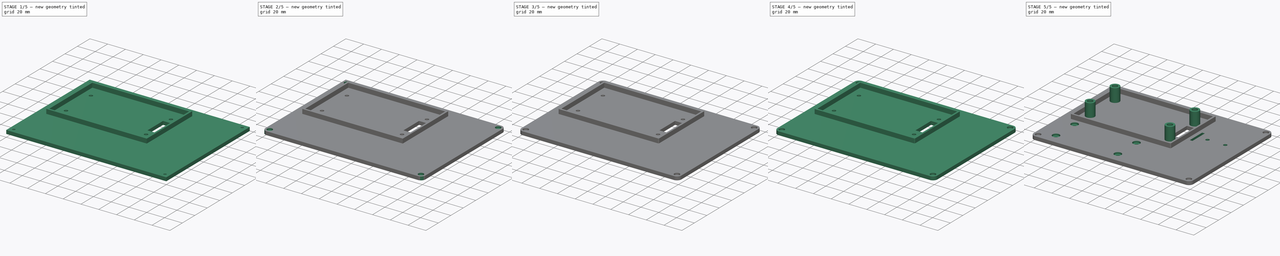
[diagram: build sequence overview — one tinted view per stage of 5, left to right]
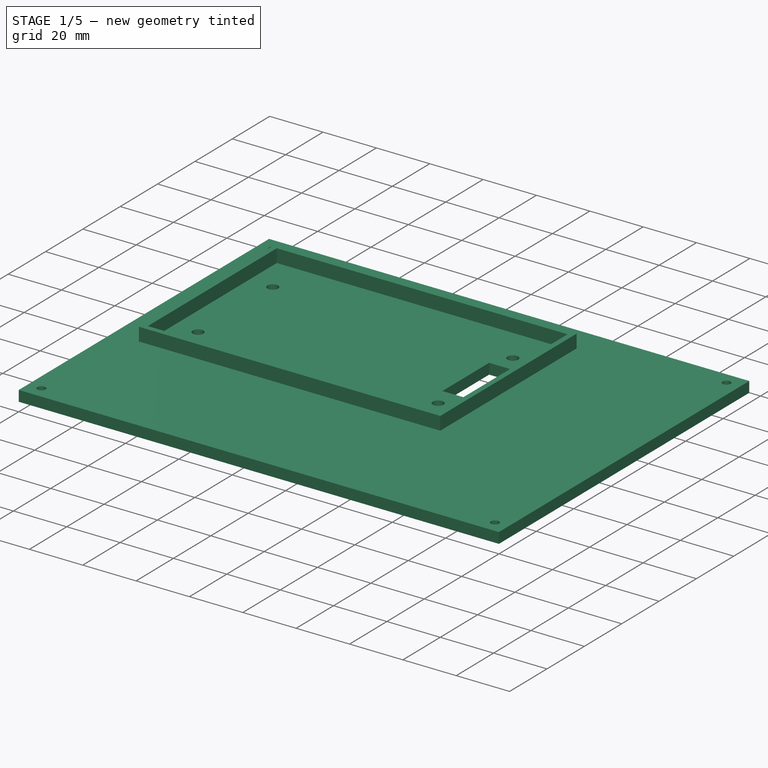
[diagram: stage 1 of 5 — iso view after this stage's code; geometry added in this stage tinted green]
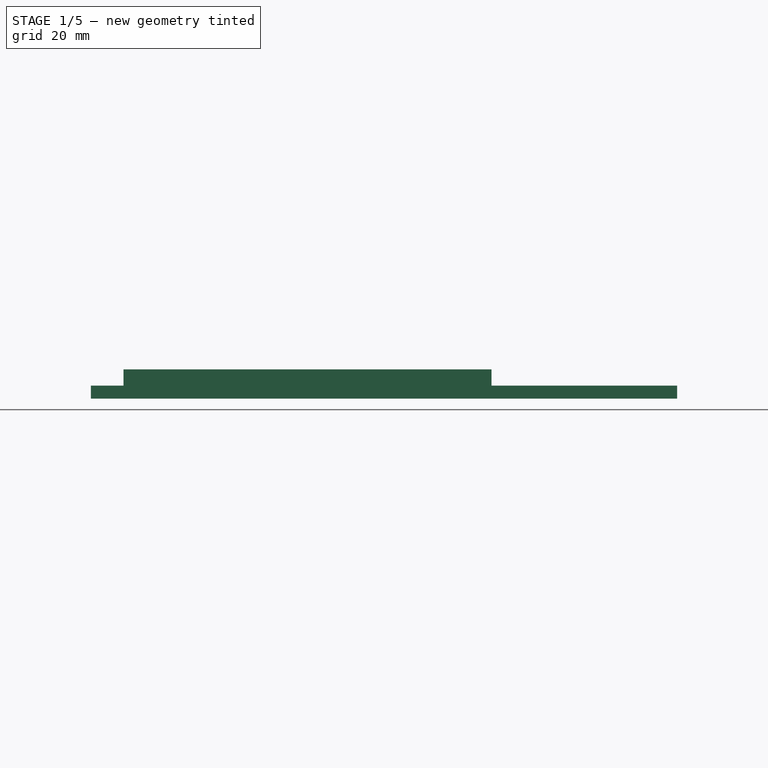
[diagram: stage 1 of 5 — front view after this stage's code; geometry added in this stage tinted green]
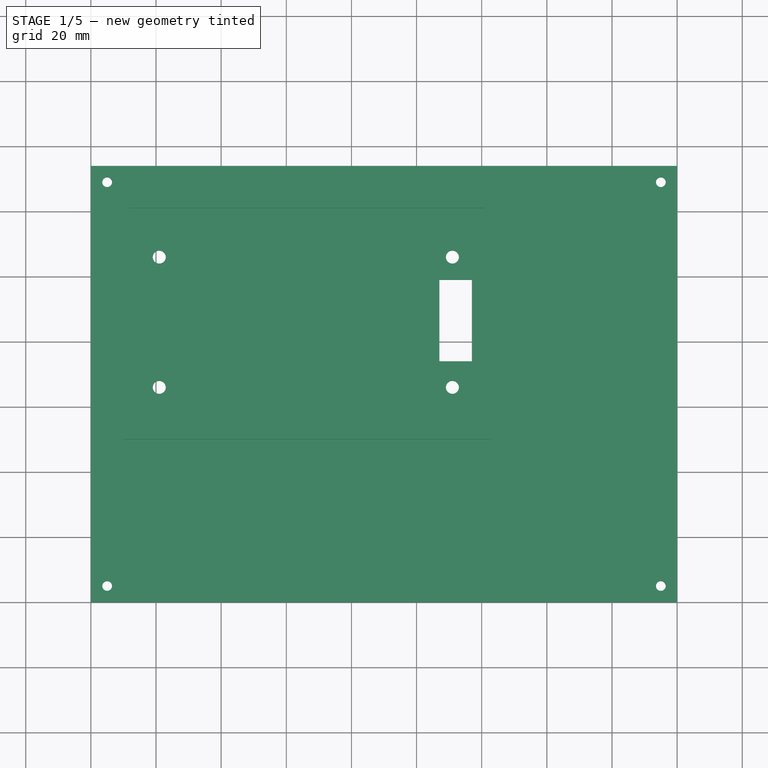
[diagram: stage 1 of 5 — top view after this stage's code; geometry added in this stage tinted green]
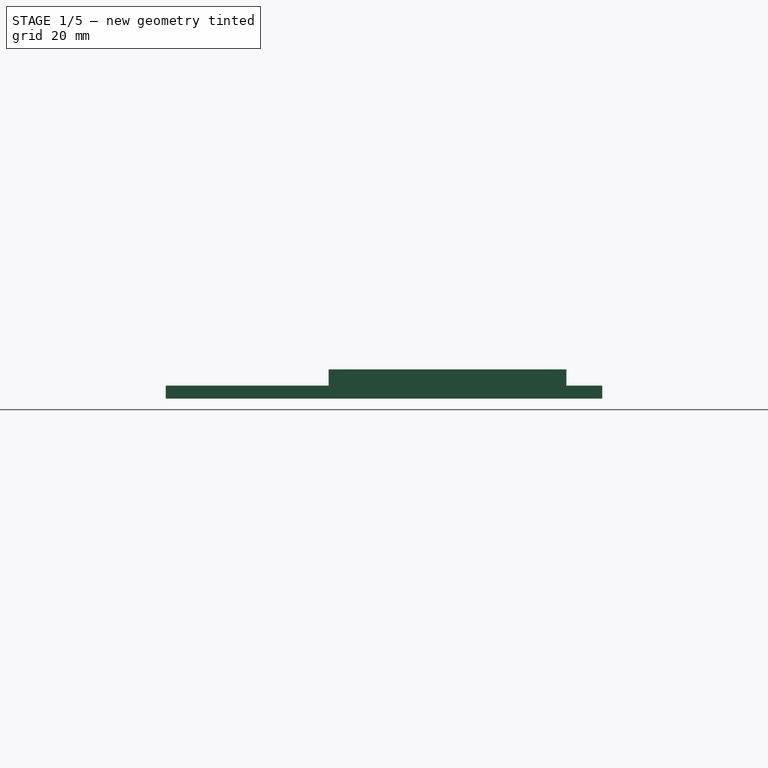
[diagram: stage 1 of 5 — right view after this stage's code; geometry added in this stage tinted green]
FCSTD DOCUMENT  (FreeCAD 0.16R6706 (Git))
Label: iROB-EA_ModuloPrincipal_Tapa
License: All rights reserved
LicenseURL: http://en.wikipedia.org/wiki/All_rights_reserved
objects: PartDesign::Fillet×12, Sketcher::SketchObject×8, PartDesign::Pocket×5, PartDesign::Pad×3
note: 36 computed .brp shape members not serialized (recipe doc carries the construction recipe); baked Part::Feature solids carry a one-line shape summary decoded from their .brp

FEATURE [Sketcher::SketchObject] Sketch  label="Base"
  sketch-geometry (4):
    g0: LineSegment StartX=0 StartY=134 StartZ=0 EndX=180 EndY=134 EndZ=0
    g1: LineSegment StartX=180 StartY=134 StartZ=0 EndX=180 EndY=0 EndZ=0
    g2: LineSegment StartX=180 StartY=0 StartZ=0 EndX=0 EndY=0 EndZ=0
    g3: LineSegment StartX=0 StartY=0 StartZ=0 EndX=0 EndY=134 EndZ=0
  constraints (11):
    c: Coincident(g0,g1)
    c: Coincident(g1,g2)
    c: Coincident(g2,g3)
    c: Coincident(g3,g0)
    c: Horizontal(g0)
    c: Horizontal(g2)
    c: Vertical(g1)
    c: Vertical(g3)
    c: DistanceX(g0,g0) = 180
    c: DistanceY(g3,g3) = 134
    c: Coincident(g2,g-1)
FEATURE [PartDesign::Pad] Pad
  Length = 4
  Length2 = 100
  Sketch = -> Sketch
  Type = 0
FEATURE [Sketcher::SketchObject] Sketch001  label="Tornillos_Tapa"
  Placement = pos=(0,0,4) rot=(0,0,1;0rad)
  Support = -> Pad [Face6]
  sketch-geometry (4):
    g0: Circle CenterX=5 CenterY=129 CenterZ=0 NormalX=0 NormalY=0 NormalZ=1 Radius=1.5
    g1: Circle CenterX=175 CenterY=129 CenterZ=0 NormalX=0 NormalY=0 NormalZ=1 Radius=1.5
    g2: Circle CenterX=5 CenterY=5 CenterZ=0 NormalX=0 NormalY=0 NormalZ=1 Radius=1.5
    g3: Circle CenterX=175 CenterY=5 CenterZ=0 NormalX=0 NormalY=0 NormalZ=1 Radius=1.5
  constraints (11):
    c: Radius(g0) = 1.5
    c: Radius(g1) = 1.5
    c: DistanceY(g0,g1) = 0
    c: DistanceX(g0,g1) = 170
    c: Radius(g2) = 1.5
    c: Radius(g3) = 1.5
    c: DistanceY(g2,g3) = 0
    c: DistanceX(g0,g2) = 0
    c: DistanceY(g2,g0) = 124
    c: DistanceX(g2,g-1) = -5
    c: DistanceY(g-1,g2) = 5
FEATURE [PartDesign::Pocket] Pocket
  Length = 4
  Sketch = -> Sketch001
  Type = 0
FEATURE [Sketcher::SketchObject] Sketch002  label="Borde"
  Placement = pos=(0,0,4) rot=(0,0,1;0rad)
  Support = -> Pocket [Face5]
  sketch-geometry (8):
    g0: LineSegment StartX=12 StartY=121 StartZ=0 EndX=121 EndY=121 EndZ=0
    g1: LineSegment StartX=121 StartY=121 StartZ=0 EndX=121 EndY=52 EndZ=0
    g2: LineSegment StartX=121 StartY=52 StartZ=0 EndX=12 EndY=52 EndZ=0
    g3: LineSegment StartX=12 StartY=52 StartZ=0 EndX=12 EndY=121 EndZ=0
    g4: LineSegment StartX=10 StartY=123 StartZ=0 EndX=123 EndY=123 EndZ=0
    g5: LineSegment StartX=123 StartY=123 StartZ=0 EndX=123 EndY=50 EndZ=0
    g6: LineSegment StartX=123 StartY=50 StartZ=0 EndX=10 EndY=50 EndZ=0
    g7: LineSegment StartX=10 StartY=50 StartZ=0 EndX=10 EndY=123 EndZ=0
  constraints (24):
    c: Coincident(g0,g1)
    c: Coincident(g1,g2)
    c: Coincident(g2,g3)
    c: Coincident(g3,g0)
    c: Horizontal(g0)
    c: Horizontal(g2)
    c: Vertical(g1)
    c: Vertical(g3)
    c: DistanceX(g0,g0) = 109
    c: DistanceY(g3,g3) = 69
    c: Coincident(g4,g5)
    c: Coincident(g5,g6)
    c: Coincident(g6,g7)
    c: Coincident(g7,g4)
    c: Horizontal(g4)
    c: Horizontal(g6)
    c: Vertical(g5)
    c: Vertical(g7)
    c: DistanceX(g4,g4) = 113
    c: DistanceY(g7,g7) = 73
    c: DistanceX(g6,g2) = 2
    c: DistanceY(g2,g6) = -2
    c: DistanceX(g6,g-1) = -10
    c: DistanceY(g-1,g6) = 50
FEATURE [PartDesign::Pad] Pad001
  Length = 5
  Length2 = 100
  Sketch = -> Sketch002
  Type = 0
FEATURE [Sketcher::SketchObject] Sketch003  label="Tornillos_Estacion_Ranura_Cable"
  Placement = pos=(0,0,4) rot=(0,0,1;0rad)
  Support = -> Pad001 [Face20]
  sketch-geometry (8):
    g0: Circle CenterX=21 CenterY=106 CenterZ=0 NormalX=0 NormalY=0 NormalZ=1 Radius=2
    g1: Circle CenterX=111 CenterY=106 CenterZ=0 NormalX=0 NormalY=0 NormalZ=1 Radius=2
    g2: Circle CenterX=21 CenterY=66 CenterZ=0 NormalX=0 NormalY=0 NormalZ=1 Radius=2
    g3: Circle CenterX=111 CenterY=66 CenterZ=0 NormalX=0 NormalY=0 NormalZ=1 Radius=2
    g4: LineSegment StartX=107 StartY=99 StartZ=0 EndX=117 EndY=99 EndZ=0
    g5: LineSegment StartX=117 StartY=99 StartZ=0 EndX=117 EndY=74 EndZ=0
    g6: LineSegment StartX=117 StartY=74 StartZ=0 EndX=107 EndY=74 EndZ=0
    g7: LineSegment StartX=107 StartY=74 StartZ=0 EndX=107 EndY=99 EndZ=0
  constraints (24):
    c: Radius(g0) = 2
    c: Radius(g1) = 2
    c: DistanceY(g0,g1) = 0
    c: DistanceX(g0,g1) = 90
    c: Radius(g2) = 2
    c: Radius(g3) = 2
    c: DistanceX(g0,g2) = 0
    c: DistanceY(g2,g0) = 40
    c: DistanceY(g3,g2) = 0
    c: DistanceX(g3,g1) = 0
    c: DistanceY(g-1,g2) = 66
    c: DistanceX(g2,g-1) = -21
    c: Coincident(g4,g5)
    c: Coincident(g5,g6)
    c: Coincident(g6,g7)
    c: Coincident(g7,g4)
    c: Horizontal(g4)
    c: Horizontal(g6)
    c: Vertical(g5)
    c: Vertical(g7)
    c: DistanceX(g4,g4) = 10
    c: DistanceY(g5,g5) = 25
    c: DistanceX(g-1,g6) = 107
    c: DistanceY(g-1,g6) = 74
FEATURE [PartDesign::Pocket] Pocket001
  Length = 4
  Sketch = -> Sketch003
  Type = 0
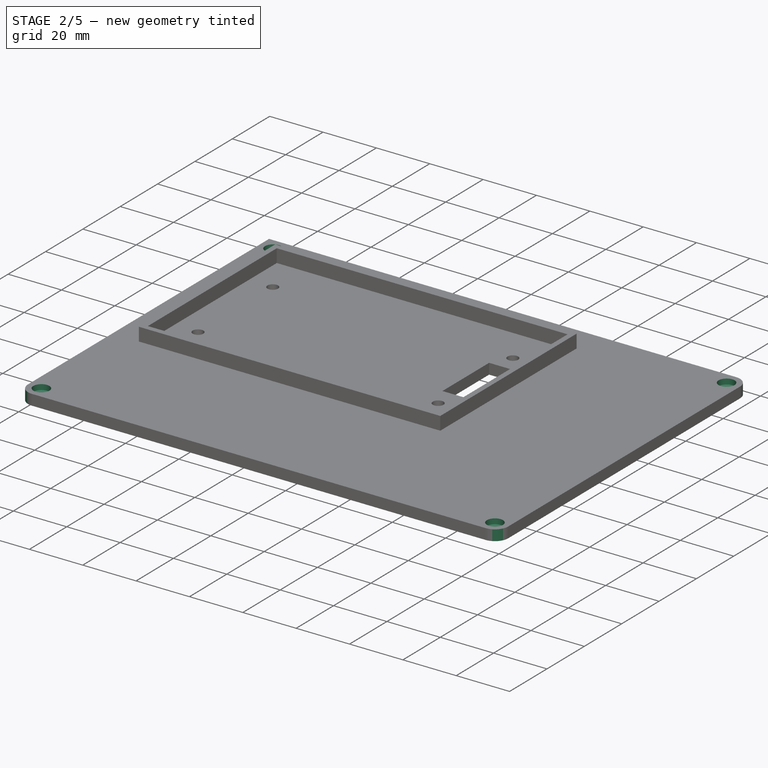
[diagram: stage 2 of 5 — iso view after this stage's code; geometry added in this stage tinted green]
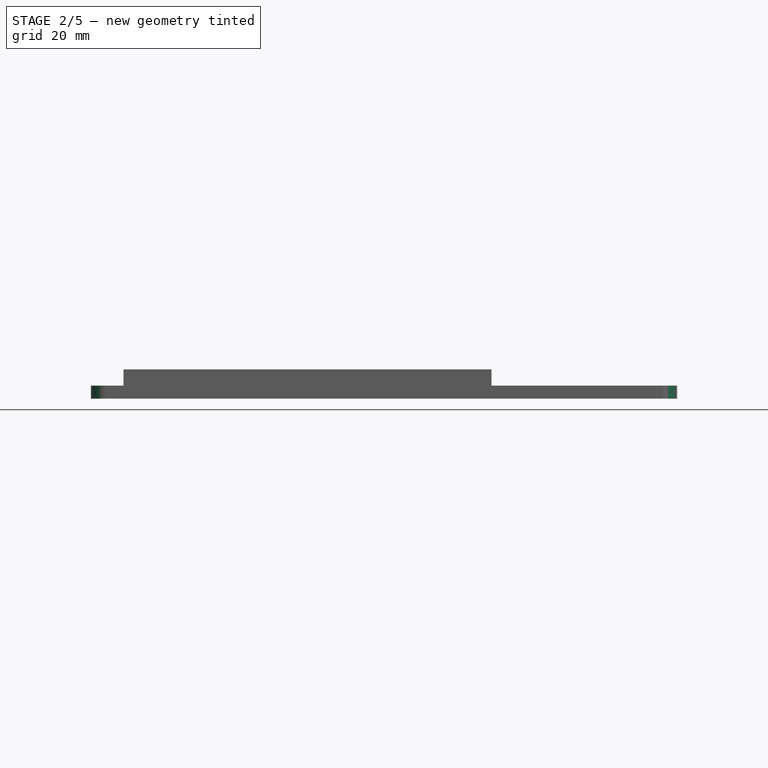
[diagram: stage 2 of 5 — front view after this stage's code; geometry added in this stage tinted green]
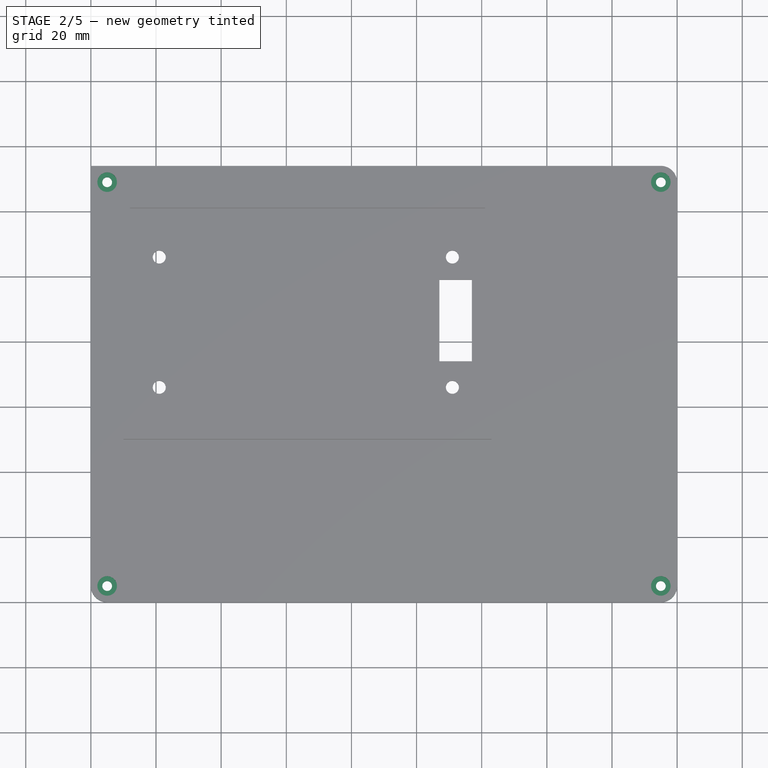
[diagram: stage 2 of 5 — top view after this stage's code; geometry added in this stage tinted green]
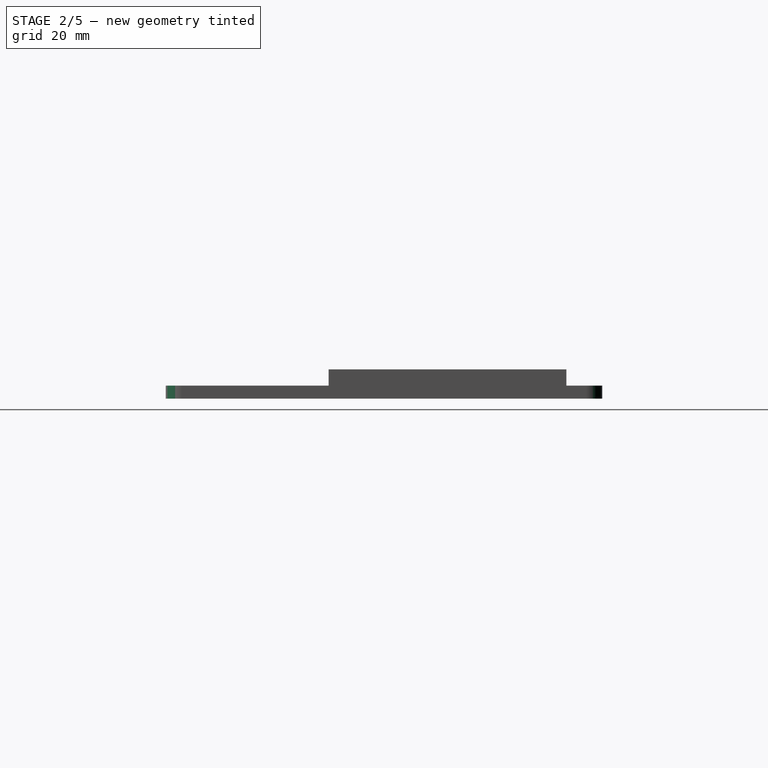
[diagram: stage 2 of 5 — right view after this stage's code; geometry added in this stage tinted green]
FEATURE [Sketcher::SketchObject] Sketch004
  Placement = pos=(0,0,4) rot=(0,0,1;0rad)
  Support = -> Pocket001 [Face5]
  sketch-geometry (4):
    g0: Circle CenterX=5 CenterY=5 CenterZ=0 NormalX=0 NormalY=0 NormalZ=1 Radius=3
    g1: Circle CenterX=175 CenterY=5 CenterZ=0 NormalX=0 NormalY=0 NormalZ=1 Radius=3
    g2: Circle CenterX=5 CenterY=129 CenterZ=0 NormalX=0 NormalY=0 NormalZ=1 Radius=3
    g3: Circle CenterX=175 CenterY=129 CenterZ=0 NormalX=0 NormalY=0 NormalZ=1 Radius=3
  constraints (12):
    c: Radius(g0) = 3
    c: Radius(g1) = 3
    c: DistanceY(g0,g1) = 0
    c: DistanceY(g-1,g0) = 5
    c: DistanceX(g0,g-1) = -5
    c: DistanceX(g1,g0) = -170
    c: Radius(g2) = 3
    c: DistanceX(g2,g0) = 0
    c: DistanceY(g0,g2) = 124
    c: Radius(g3) = 3
    c: DistanceY(g3,g2) = 0
    c: DistanceX(g3,g2) = -170
FEATURE [PartDesign::Pocket] Pocket002
  Length = 2
  Sketch = -> Sketch004
  Type = 0
FEATURE [PartDesign::Fillet] Fillet  label="Borde_Tapa_0"
  Base = -> Pocket002 [Edge5]
  Radius = 5
FEATURE [PartDesign::Fillet] Fillet001  label="Borde_Tapa_1"
  Base = -> Fillet [Edge35]
  Radius = 5
FEATURE [PartDesign::Fillet] Fillet002  label="Borde_Tapa_2"
  Base = -> Fillet001 [Edge26]
  Radius = 5
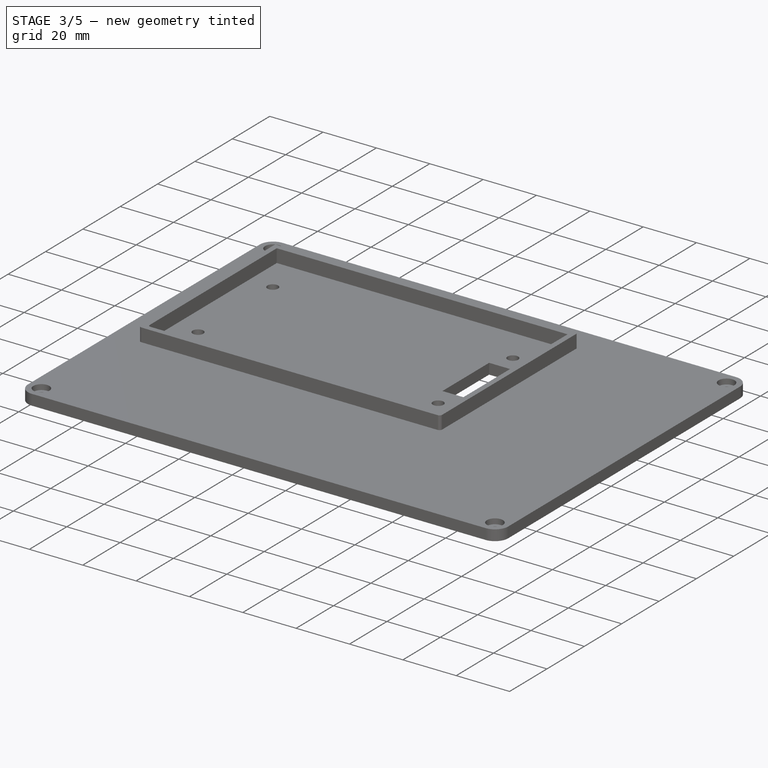
[diagram: stage 3 of 5 — iso view after this stage's code; geometry added in this stage tinted green]
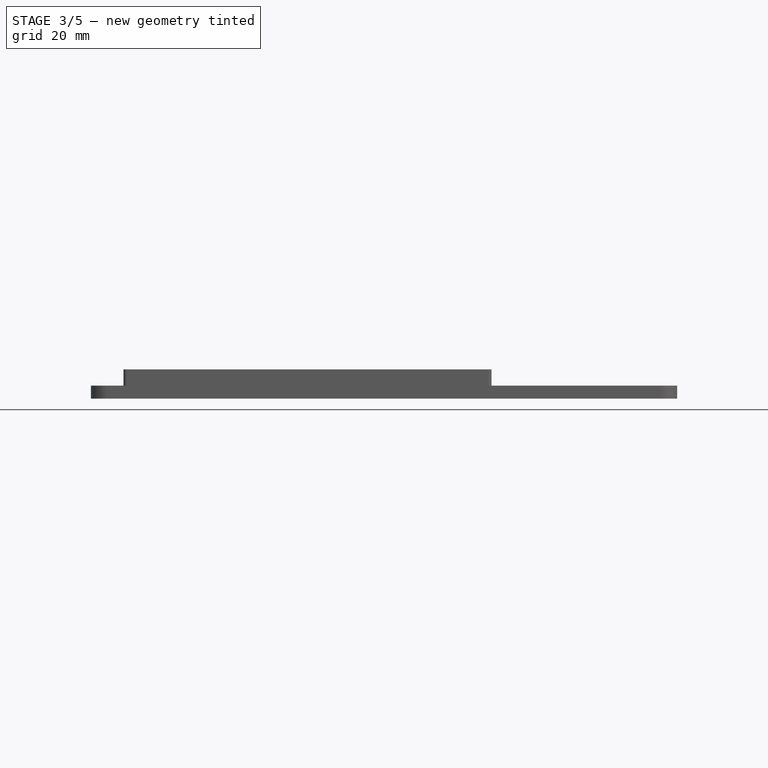
[diagram: stage 3 of 5 — front view after this stage's code; geometry added in this stage tinted green]
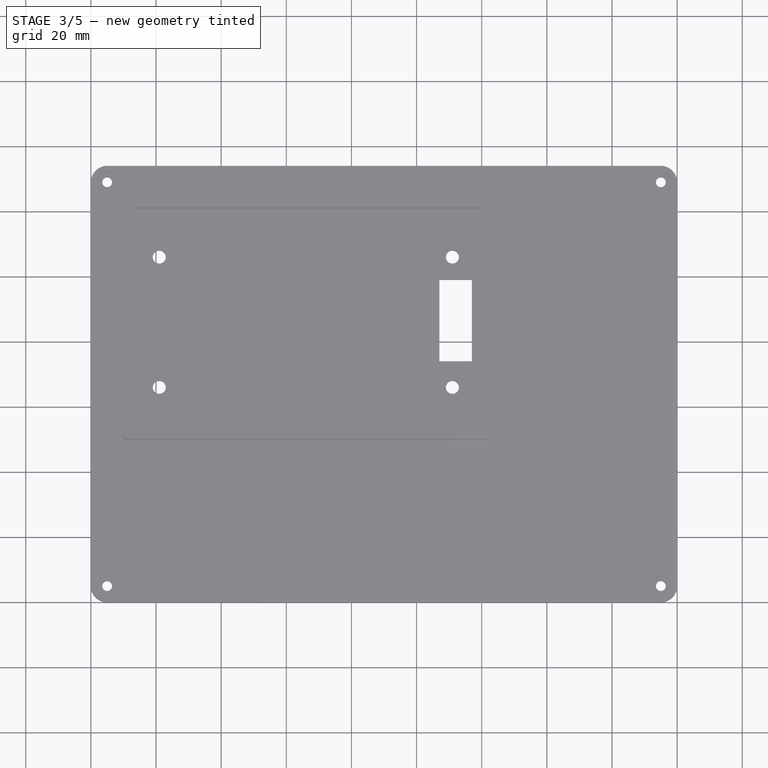
[diagram: stage 3 of 5 — top view after this stage's code; geometry added in this stage tinted green]
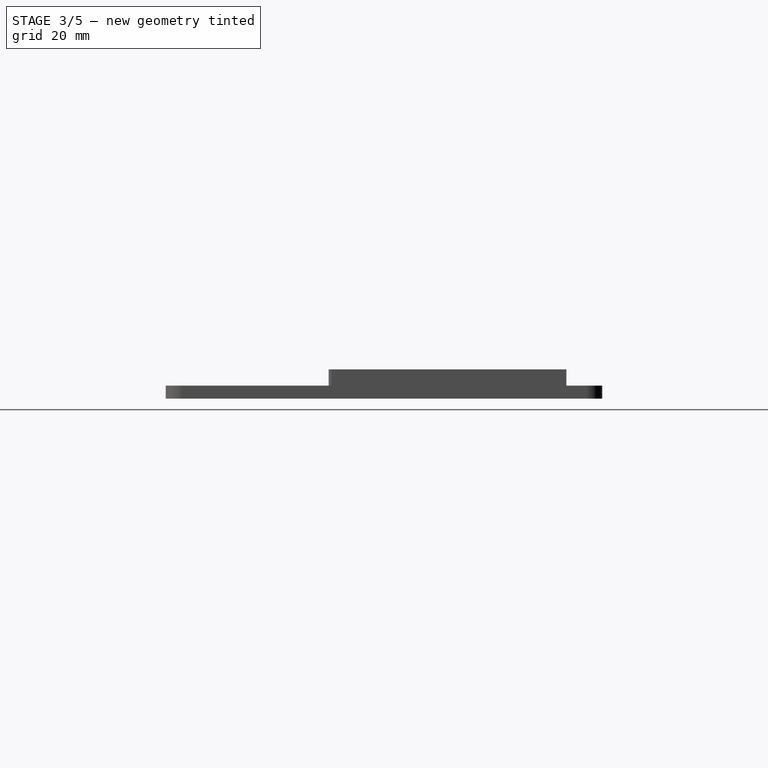
[diagram: stage 3 of 5 — right view after this stage's code; geometry added in this stage tinted green]
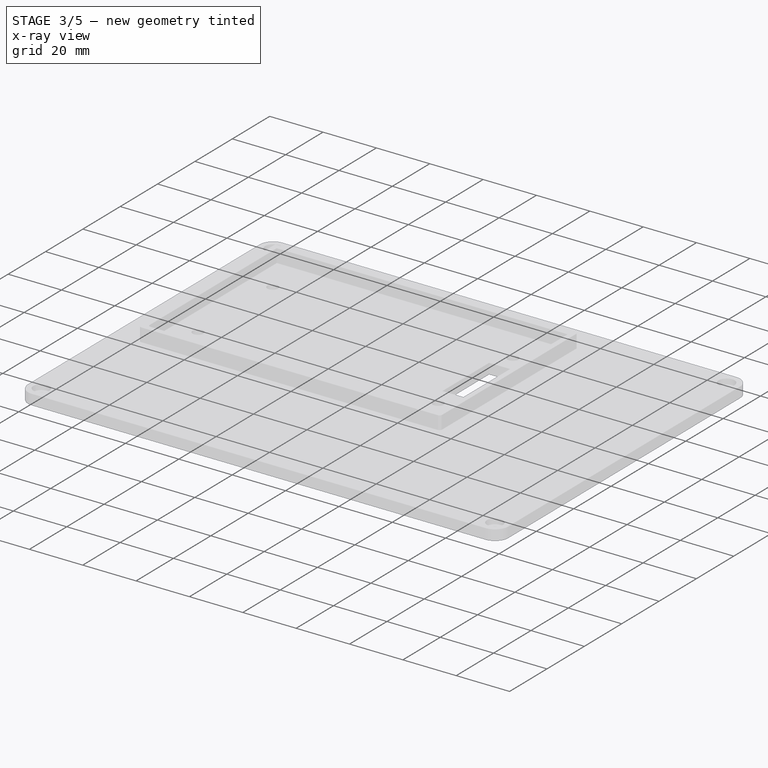
[diagram: stage 3 of 5 — x-ray composite at the iso view; earlier geometry ghosted, this stage's added geometry solid]
FEATURE [PartDesign::Fillet] Fillet003  label="Borde_Tapa_3"
  Base = -> Fillet002 [Edge27]
  Radius = 5
FEATURE [PartDesign::Fillet] Fillet004
  Base = -> Fillet003 [Edge79]
  Radius = 1
FEATURE [PartDesign::Fillet] Fillet005
  Base = -> Fillet004 [Edge78]
  Radius = 1
FEATURE [PartDesign::Fillet] Fillet006
  Base = -> Fillet005 [Edge23]
  Radius = 1
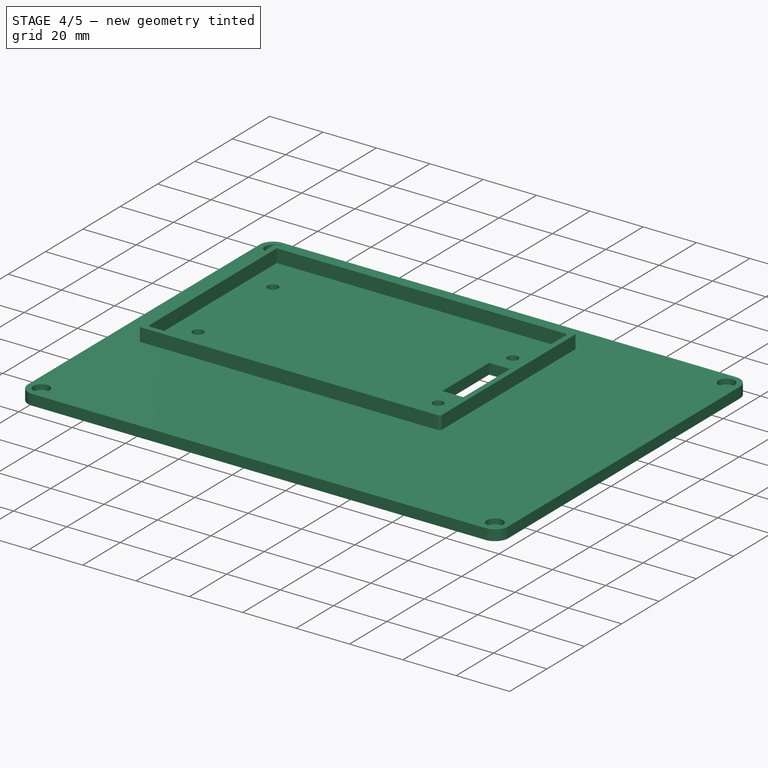
[diagram: stage 4 of 5 — iso view after this stage's code; geometry added in this stage tinted green]
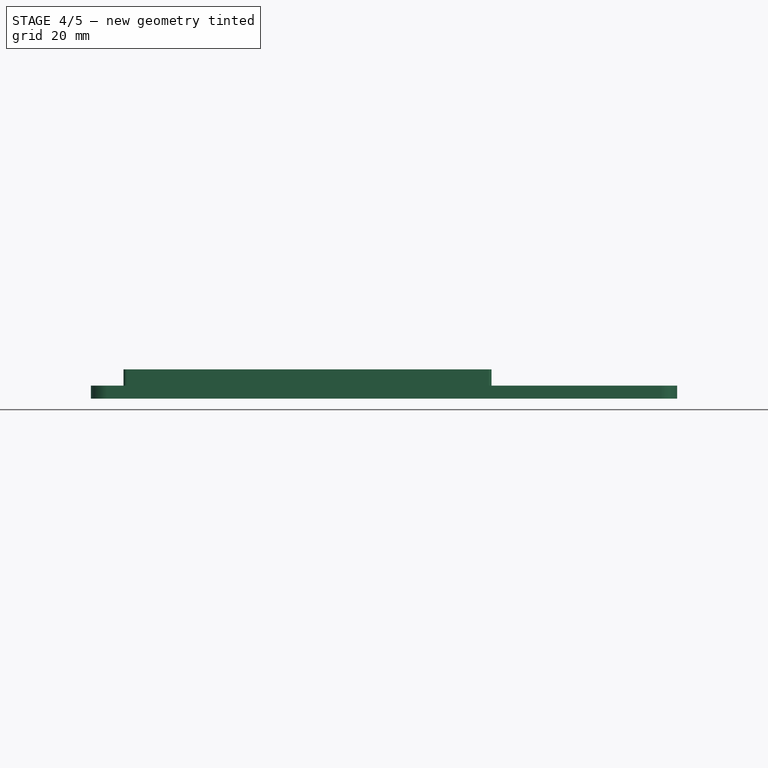
[diagram: stage 4 of 5 — front view after this stage's code; geometry added in this stage tinted green]
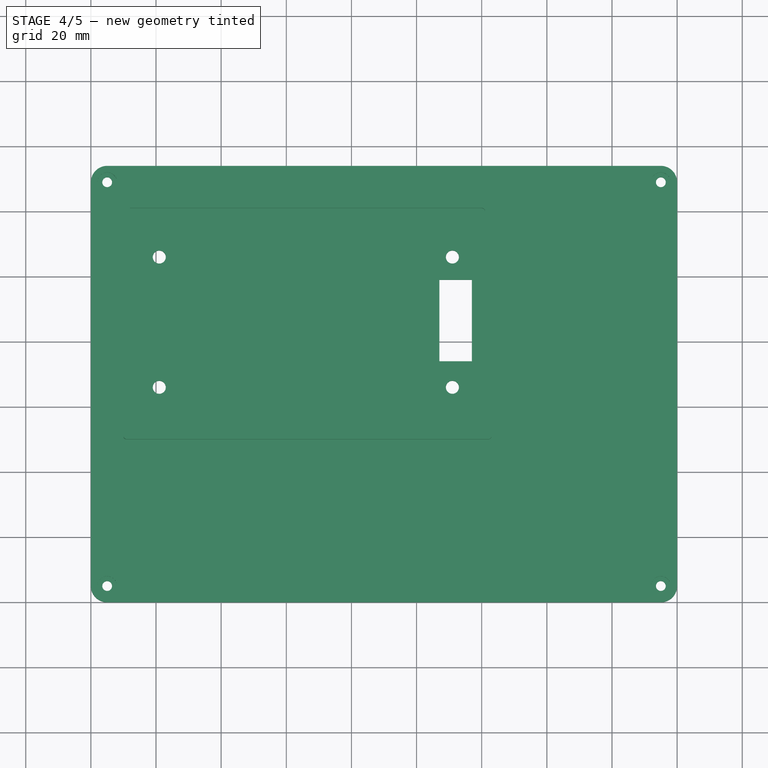
[diagram: stage 4 of 5 — top view after this stage's code; geometry added in this stage tinted green]
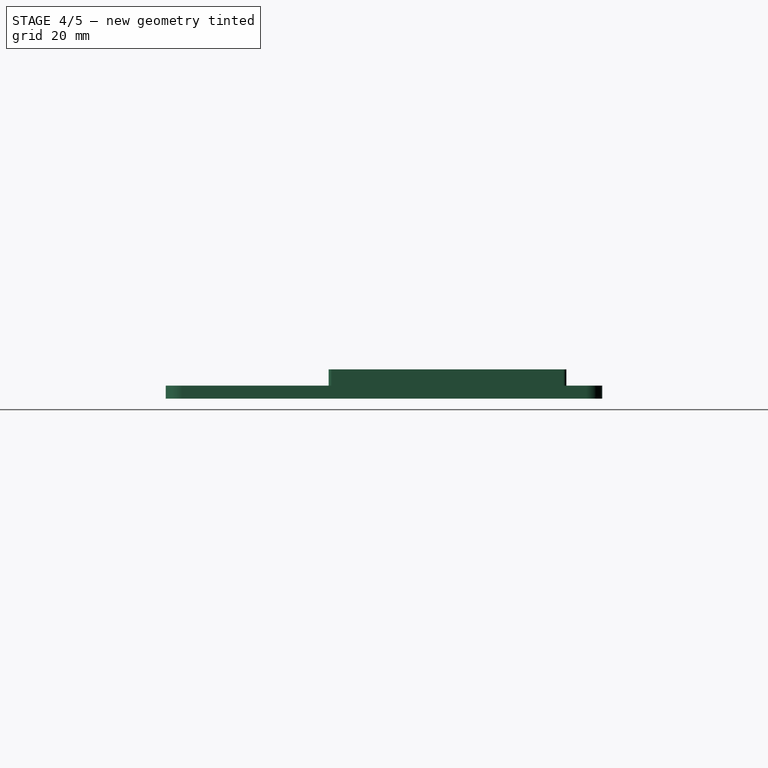
[diagram: stage 4 of 5 — right view after this stage's code; geometry added in this stage tinted green]
FEATURE [PartDesign::Fillet] Fillet007
  Base = -> Fillet006 [Edge26]
  Radius = 1
FEATURE [PartDesign::Fillet] Fillet008
  Base = -> Fillet007 [Edge21]
  Radius = 1
FEATURE [PartDesign::Fillet] Fillet009
  Base = -> Fillet008 [Edge36]
  Radius = 1
FEATURE [PartDesign::Fillet] Fillet010
  Base = -> Fillet009 [Edge23]
  Radius = 1
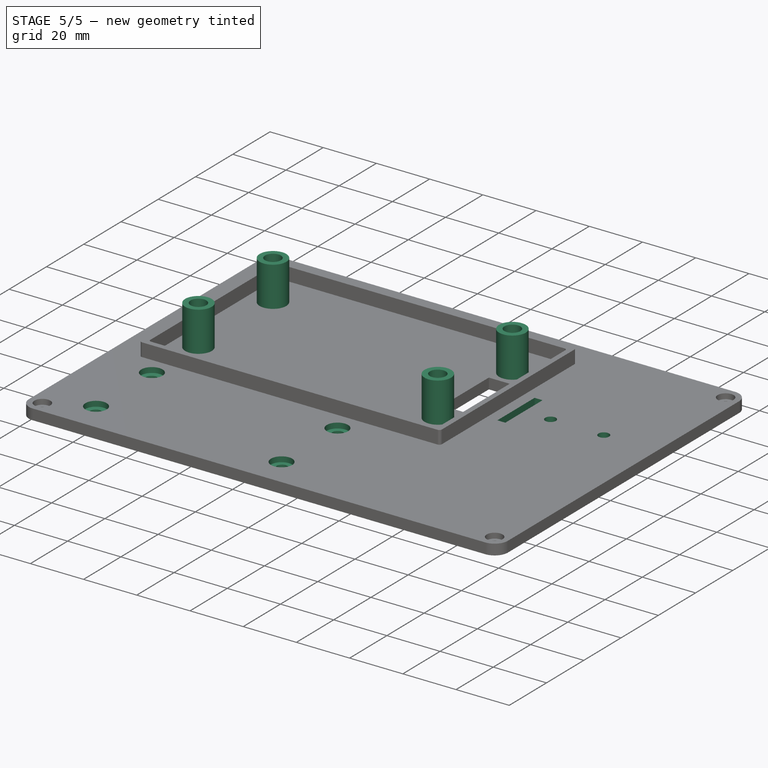
[diagram: stage 5 of 5 — iso view after this stage's code; geometry added in this stage tinted green]
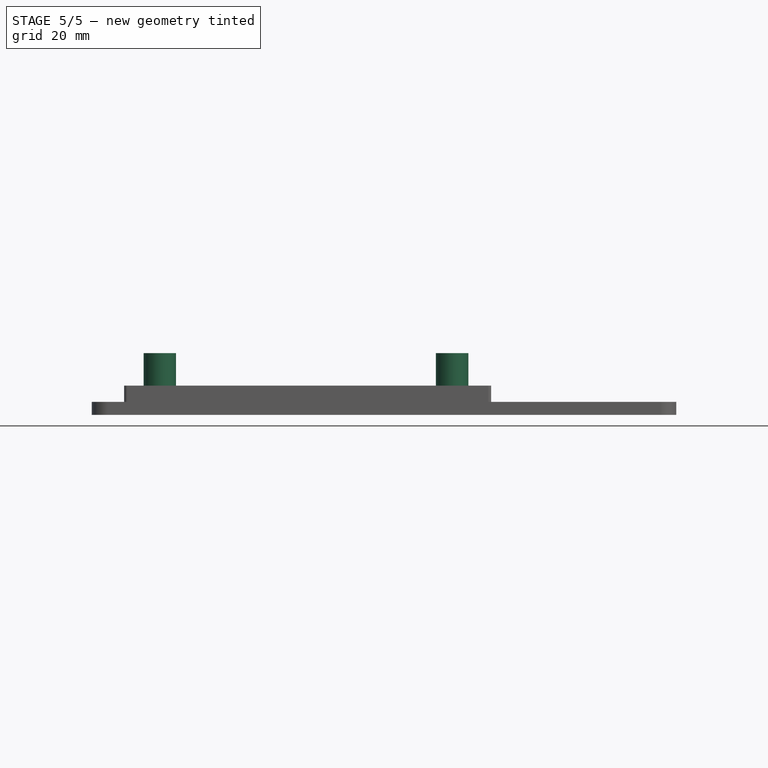
[diagram: stage 5 of 5 — front view after this stage's code; geometry added in this stage tinted green]
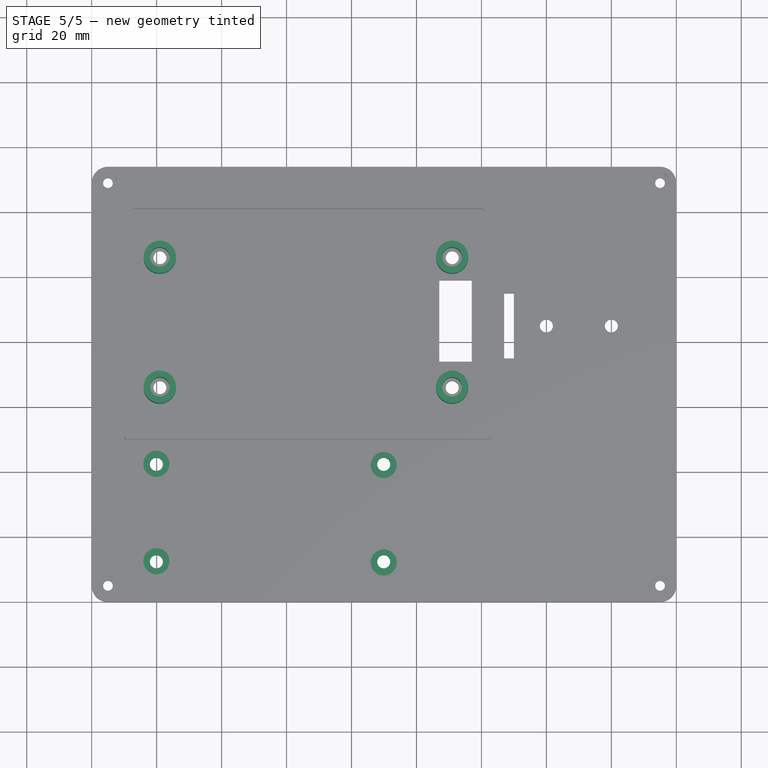
[diagram: stage 5 of 5 — top view after this stage's code; geometry added in this stage tinted green]
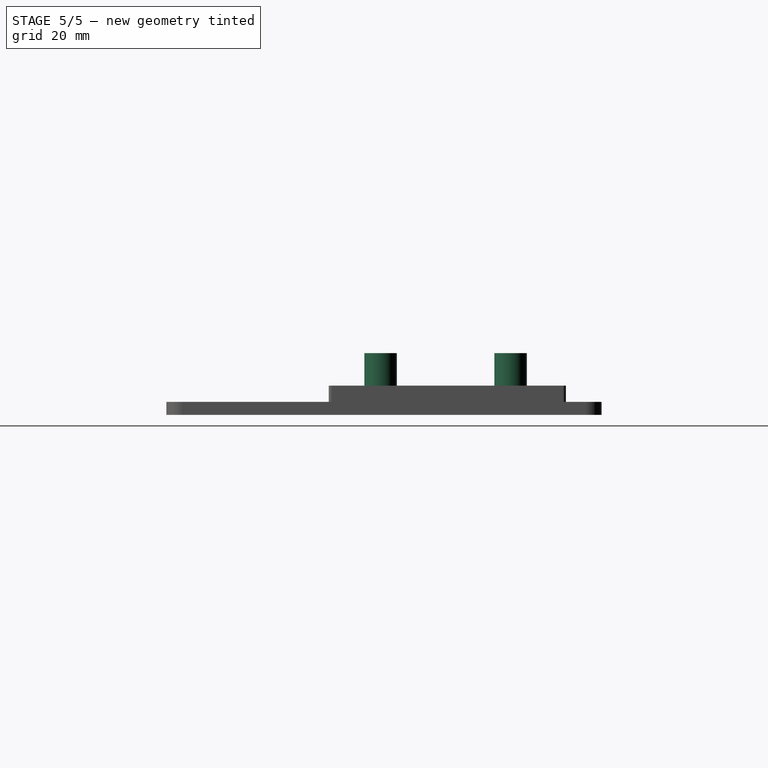
[diagram: stage 5 of 5 — right view after this stage's code; geometry added in this stage tinted green]
FEATURE [PartDesign::Fillet] Fillet011
  Base = -> Fillet010 [Edge40]
  Radius = 1
FEATURE [Sketcher::SketchObject] Sketch005
  Placement = pos=(0,0,4) rot=(0,0,1;0rad)
  Support = -> Fillet011 [Face18]
  sketch-geometry (8):
    g0: Circle CenterX=20.9725 CenterY=105.977 CenterZ=0 NormalX=0 NormalY=0 NormalZ=1 Radius=3
    g1: Circle CenterX=20.9725 CenterY=105.977 CenterZ=0 NormalX=0 NormalY=0 NormalZ=1 Radius=5
    g2: Circle CenterX=110.973 CenterY=105.977 CenterZ=0 NormalX=0 NormalY=0 NormalZ=1 Radius=3
    g3: Circle CenterX=110.973 CenterY=105.977 CenterZ=0 NormalX=0 NormalY=0 NormalZ=1 Radius=5
    g4: Circle CenterX=20.9725 CenterY=65.9768 CenterZ=0 NormalX=0 NormalY=0 NormalZ=1 Radius=3
    g5: Circle CenterX=20.9725 CenterY=65.9768 CenterZ=0 NormalX=0 NormalY=0 NormalZ=1 Radius=5
    g6: Circle CenterX=110.973 CenterY=65.9549 CenterZ=0 NormalX=0 NormalY=0 NormalZ=1 Radius=3
    g7: Circle CenterX=110.973 CenterY=65.9549 CenterZ=0 NormalX=0 NormalY=0 NormalZ=1 Radius=5
  constraints (17):
    c: Radius(g0) = 3
    c: Radius(g1) = 5
    c: Coincident(g1,g0)
    c: Radius(g2) = 3
    c: Radius(g3) = 5
    c: Coincident(g3,g2)
    c: DistanceY(g2,g0) = 0
    c: DistanceX(g0,g2) = 90
    c: Radius(g4) = 3
    c: Radius(g5) = 5
    c: Coincident(g4,g5)
    c: DistanceX(g4,g0) = 0
    c: Radius(g6) = 3
    c: Radius(g7) = 5
    c: Coincident(g7,g6)
    c: DistanceX(g4,g6) = 90
    c: DistanceY(g4,g0) = 40
FEATURE [PartDesign::Pad] Pad002
  Length = 15
  Length2 = 100
  Sketch = -> Sketch005
  Type = 0
FEATURE [Sketcher::SketchObject] Sketch006
  Placement = pos=(0,0,4) rot=(0,0,1;0rad)
  Support = -> Pad002 [Face19]
  sketch-geometry (10):
    g0: Circle CenterX=140 CenterY=85 CenterZ=0 NormalX=0 NormalY=0 NormalZ=1 Radius=2
    g1: Circle CenterX=160 CenterY=85 CenterZ=0 NormalX=0 NormalY=0 NormalZ=1 Radius=2
    g2: Circle CenterX=19.9096 CenterY=42.3825 CenterZ=0 NormalX=0 NormalY=0 NormalZ=1 Radius=2
    g3: Circle CenterX=19.9096 CenterY=12.3825 CenterZ=0 NormalX=0 NormalY=0 NormalZ=1 Radius=2
    g4: LineSegment StartX=127 StartY=95 StartZ=0 EndX=130 EndY=95 EndZ=0
    g5: LineSegment StartX=130 StartY=95 StartZ=0 EndX=130 EndY=75 EndZ=0
    g6: LineSegment StartX=130 StartY=75 StartZ=0 EndX=127 EndY=75 EndZ=0
    g7: LineSegment StartX=127 StartY=75 StartZ=0 EndX=127 EndY=95 EndZ=0
    g8: Circle CenterX=89.9096 CenterY=42.3825 CenterZ=0 NormalX=0 NormalY=0 NormalZ=1 Radius=2
    g9: Circle CenterX=89.9096 CenterY=12.3825 CenterZ=0 NormalX=0 NormalY=0 NormalZ=1 Radius=2
  constraints (28):
    c: Radius(g0) = 2
    c: Radius(g1) = 2
    c: DistanceY(g0,g1) = 0
    c: DistanceX(g0,g1) = 20
    c: DistanceY(g-1,g0) = 85
    c: DistanceX(g-1,g0) = 140
    c: Radius(g2) = 2
    c: Radius(g3) = 2
    c: DistanceX(g3,g2) = 0
    c: DistanceY(g3,g2) = 30
    c: Coincident(g4,g5)
    c: Coincident(g5,g6)
    c: Coincident(g6,g7)
    c: Coincident(g7,g4)
    c: Horizontal(g4)
    c: Horizontal(g6)
    c: Vertical(g5)
    c: Vertical(g7)
    c: DistanceX(g4,g4) = 3
    c: DistanceY(g7,g7) = 20
    c: DistanceX(g6,g0) = 13
    c: DistanceY(g6,g0) = 10
    c: Radius(g8) = 2
    c: Radius(g9) = 2
    c: DistanceX(g9,g8) = 0
    c: DistanceY(g9,g8) = 30
    c: DistanceY(g9,g3) = 0
    c: DistanceX(g3,g9) = 70
FEATURE [PartDesign::Pocket] Pocket003
  Length = 5
  Sketch = -> Sketch006
  Type = 0
FEATURE [Sketcher::SketchObject] Sketch007
  Placement = pos=(0,0,4) rot=(0,0,1;0rad)
  Support = -> Pocket003 [Face19]
  sketch-geometry (4):
    g0: Circle CenterX=19.9199 CenterY=42.5 CenterZ=0 NormalX=0 NormalY=0 NormalZ=1 Radius=4
    g1: Circle CenterX=19.9199 CenterY=12.5 CenterZ=0 NormalX=0 NormalY=0 NormalZ=1 Radius=4
    g2: Circle CenterX=89.9199 CenterY=42.132 CenterZ=0 NormalX=0 NormalY=0 NormalZ=1 Radius=4
    g3: Circle CenterX=89.9199 CenterY=12.132 CenterZ=0 NormalX=0 NormalY=0 NormalZ=1 Radius=4
  constraints (10):
    c: Radius(g0) = 4
    c: Radius(g1) = 4
    c: DistanceX(g1,g0) = 0
    c: DistanceY(g1,g0) = 30
    c: Radius(g2) = 4
    c: Radius(g3) = 4
    c: DistanceX(g3,g2) = 0
    c: DistanceY(g3,g2) = 30
    c: DistanceX(g0,g2) = 70
    c: DistanceY(g-1,g1) = 12.5
FEATURE [PartDesign::Pocket] Pocket004
  Length = 2
  Sketch = -> Sketch007
  Type = 0
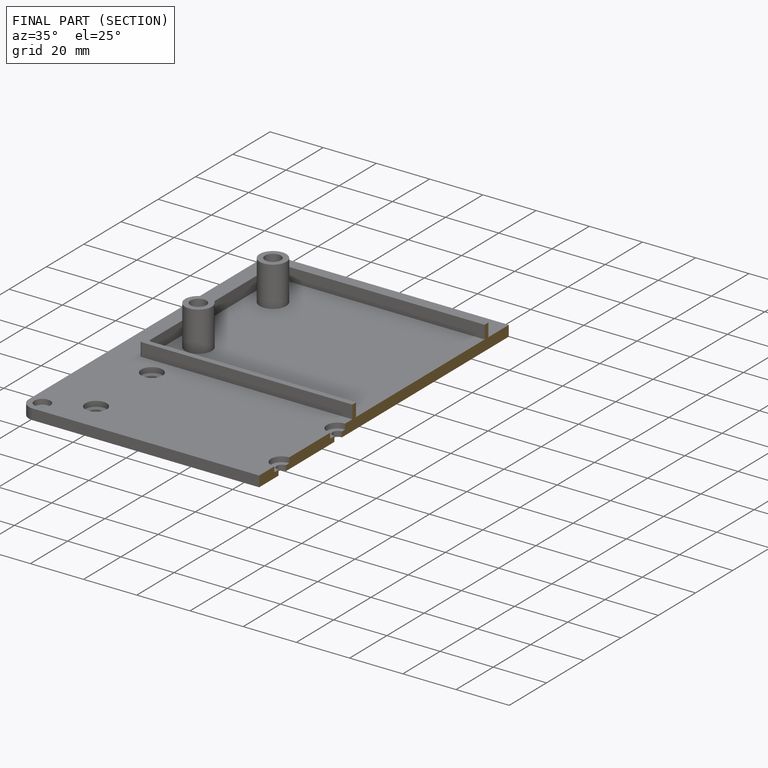
[diagram: finished part — half-section view (interior)]
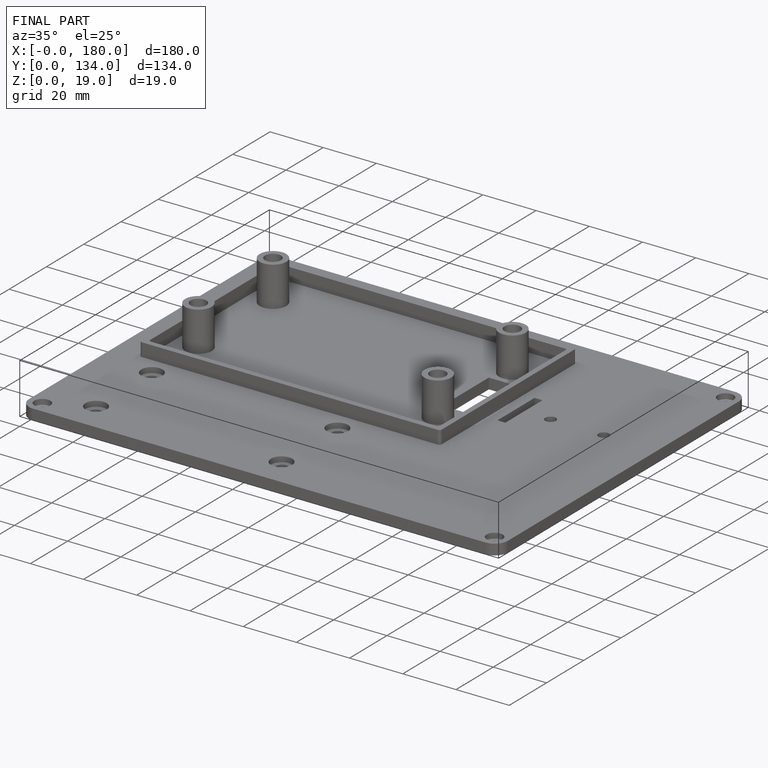
[diagram: finished part — iso view with bounding-box wireframe]
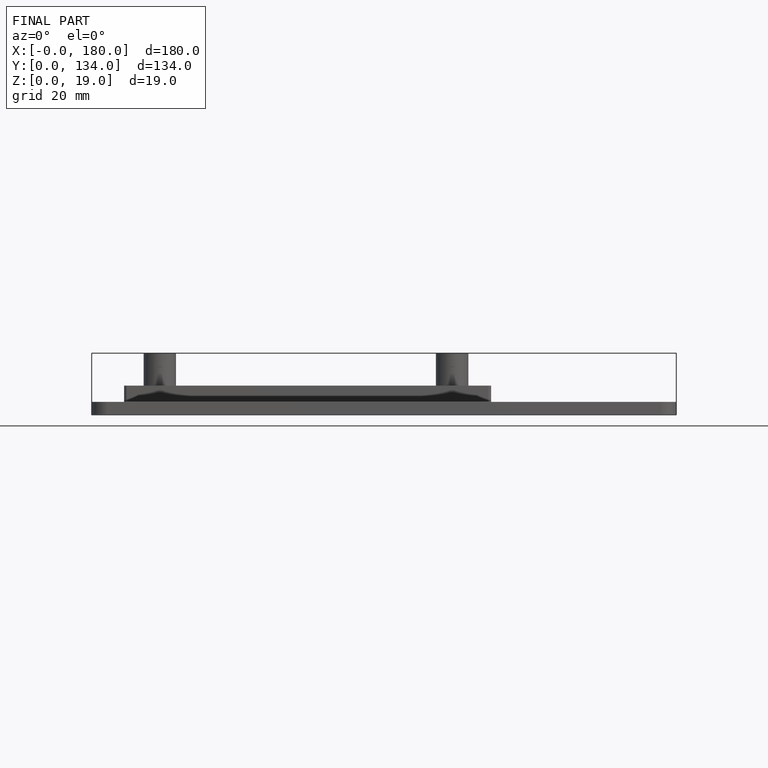
[diagram: finished part — front view with bounding-box wireframe]
